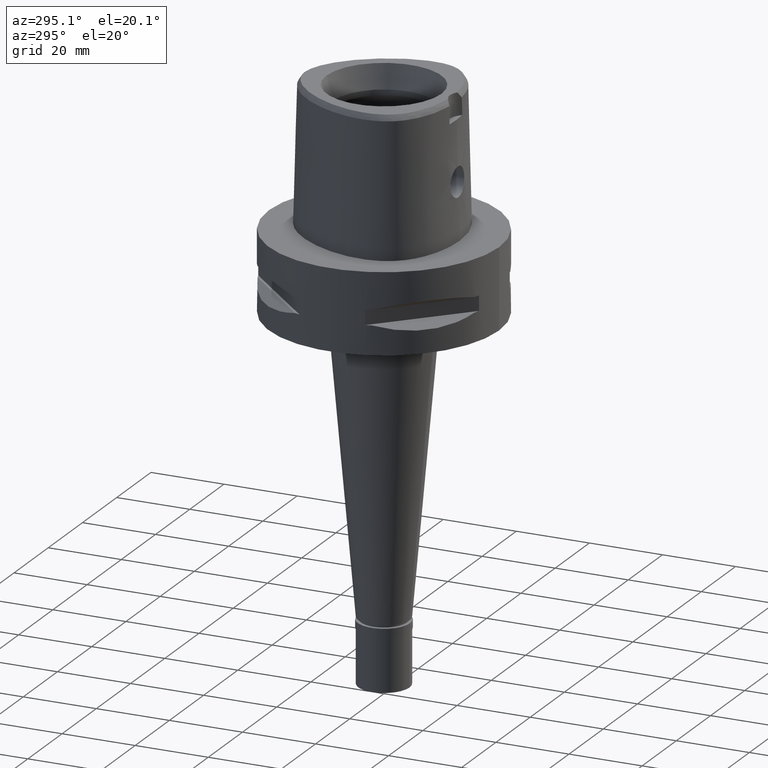
[diagram: clean part render]
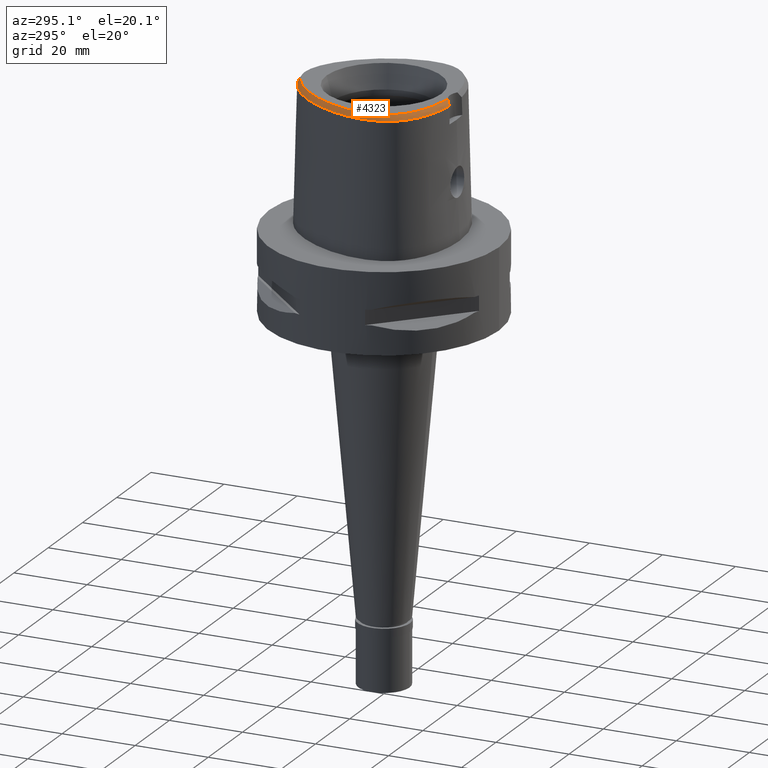
[diagram: same view with one face highlighted and labeled with its STEP entity id]
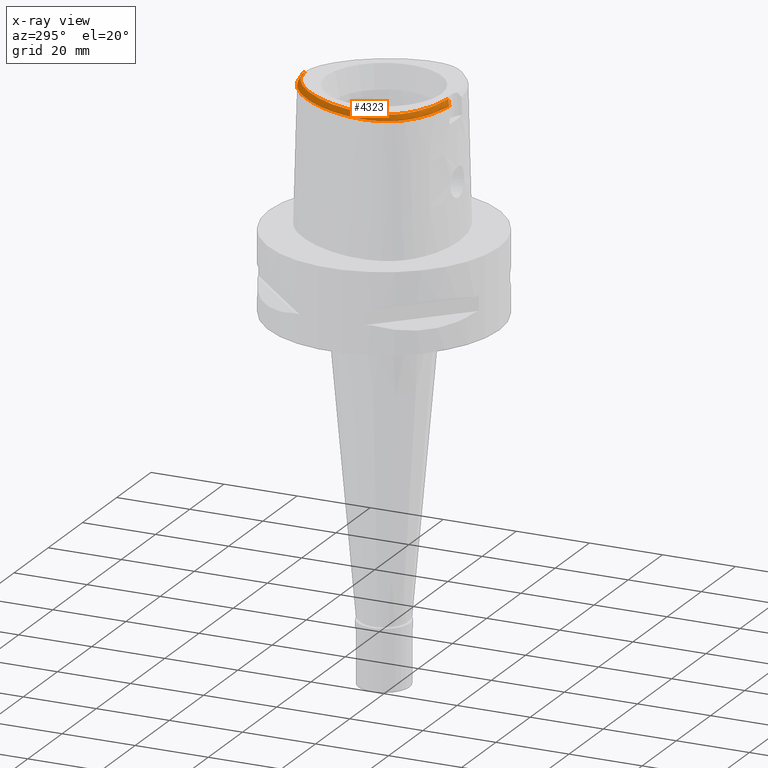
[diagram: x-ray of the same camera — body ghosted, the highlighted face saturated]
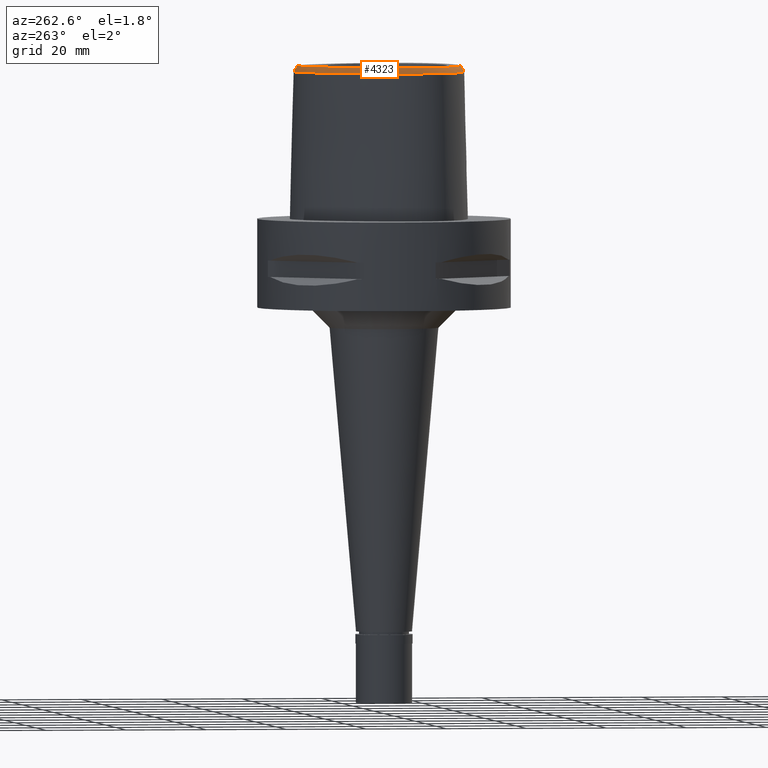
[diagram: same view with one face highlighted and labeled with its STEP entity id]
A machine part, auxiliary view. The second image highlights one B-rep face of the part: STEP entity #4323.
The next image is the same camera in x-ray: the body ghosted, the highlighted face saturated — about 0% of this face is hidden behind the body in this view.
A second angle (auxiliary view) of the same face is appended — the face is thin or edge-on in the first view.
In plain terms, the highlighted face is a freeform B-spline surface patch.
Its self-contained STEP definition (entity closure, byte-faithful):
#13 = CARTESIAN_POINT ( 'NONE',  ( -20.18507091242999962, -10.27080217816999941, 36.33730920690000232 ) ) ;
#17 = CARTESIAN_POINT ( 'NONE',  ( -2.682279906006999948, -18.78035848609999903, 38.00000000000000000 ) ) ;
#35 = CARTESIAN_POINT ( 'NONE',  ( -20.98257640658999890, -5.318571733355000219, 36.95304534323000212 ) ) ;
#47 = CARTESIAN_POINT ( 'NONE',  ( -19.98419490691658140, -7.809898894995987106, 37.99999999999893419 ) ) ;
#60 = CARTESIAN_POINT ( 'NONE',  ( -19.85209195542000060, -10.12225759972999839, 36.95304482433000715 ) ) ;
#85 = CARTESIAN_POINT ( 'NONE',  ( -20.37533892045000172, -8.724838899966998795, 36.95304468887999860 ) ) ;
#102 = CARTESIAN_POINT ( 'NONE',  ( -19.54919922641915520, -9.228169790567891440, 38.00000000000300560 ) ) ;
#109 = CARTESIAN_POINT ( 'NONE',  ( -2.129028429010999535, -19.80587395599000189, 36.33730992873000076 ) ) ;
#123 = CARTESIAN_POINT ( 'NONE',  ( -12.44116897271302058, 14.89128547409752912, 38.00000000000346034 ) ) ;
#132 = CARTESIAN_POINT ( 'NONE',  ( -15.87514741396999973, -14.49958176875999882, 37.56878043022999947 ) ) ;
#142 = CARTESIAN_POINT ( 'NONE',  ( -2.198999323874000211, 22.47039607780000026, 36.33730900220999871 ) ) ;
#149 = CARTESIAN_POINT ( 'NONE',  ( -10.17136073855662204, -17.24644253469881505, 37.99999999999920419 ) ) ;
#158 = CARTESIAN_POINT ( 'NONE',  ( -10.13504734495000115, -17.14341520066000157, 38.18451578748000230 ) ) ;
#166 = CARTESIAN_POINT ( 'NONE',  ( -4.215658479161999317, 20.76450822006999886, 38.18451608323000102 ) ) ;
#183 = CARTESIAN_POINT ( 'NONE',  ( -7.573514501227999851, -17.90397463388999810, 38.18451574515000146 ) ) ;
#189 = CARTESIAN_POINT ( 'NONE',  ( -6.010881776514001018, 20.35911127490000183, 37.56878056077000139 ) ) ;
#202 = CARTESIAN_POINT ( 'NONE',  ( -2.315568506164999540, -19.42932656560000027, 36.95304531299999695 ) ) ;
#211 = FACE_OUTER_BOUND ( 'NONE', #3479, .T. ) ;
#234 = CARTESIAN_POINT ( 'NONE',  ( -0.6887446045809000328, 22.29253218655000168, 36.95304455089999607 ) ) ;
#256 = CARTESIAN_POINT ( 'NONE',  ( -18.16376737907999939, 7.365439581777999400, 36.95304536617000224 ) ) ;
#263 = B_SPLINE_CURVE_WITH_KNOTS ( 'NONE', 3,
 ( #17, #3111, #4607, #2251 ),
 .UNSPECIFIED., .F., .F.,
 ( 4, 4 ),
 ( 0.0000000000000000000, 1.000000000000000000 ),
 .UNSPECIFIED. ) ;
#278 = CARTESIAN_POINT ( 'NONE',  ( -10.15169902995999962, 18.46414271463999768, 36.33731057710999579 ) ) ;
#304 = CARTESIAN_POINT ( 'NONE',  ( -3.637738201363999835, -19.56971413236999879, 36.52186244848000030 ) ) ;
#305 = CARTESIAN_POINT ( 'NONE',  ( -19.37889452079999586, 4.468327769675999761, 36.95304431115000199 ) ) ;
#331 = CARTESIAN_POINT ( 'NONE',  ( -21.13342134438999764, -0.8623622443116000236, 36.33730953845999778 ) ) ;
#353 = CARTESIAN_POINT ( 'NONE',  ( -14.25602107928999907, 12.48290860538000047, 38.18451599888999937 ) ) ;
#379 = CARTESIAN_POINT ( 'NONE',  ( -17.37265643493000056, -13.66636311014999983, 36.95304464722999427 ) ) ;
#403 = CARTESIAN_POINT ( 'NONE',  ( -17.36978564376000023, -12.61078706780999958, 38.18451607384000113 ) ) ;
#418 = CARTESIAN_POINT ( 'NONE',  ( -7.655222869372381389, 19.09452359226542839, 37.99999999999960210 ) ) ;
#429 = CARTESIAN_POINT ( 'NONE',  ( -19.78834364455000028, -9.317674896997001355, 37.56878051393000817 ) ) ;
#442 = CARTESIAN_POINT ( 'NONE',  ( -16.36032397153683959, -13.76458520345434167, 38.00000000000695621 ) ) ;
#455 = CARTESIAN_POINT ( 'NONE',  ( -20.72392772417000018, -8.831695603477999867, 36.33730899177999873 ) ) ;
#472 = CARTESIAN_POINT ( 'NONE',  ( -11.46564124494380366, 15.92741340513270920, 38.00000000000052580 ) ) ;
#482 = CARTESIAN_POINT ( 'NONE',  ( -2.084278638321999555, -19.07849178945999924, 37.56878062897999371 ) ) ;
#506 = CARTESIAN_POINT ( 'NONE',  ( -13.80323561452000192, -16.71719161161000144, 36.33730895135999361 ) ) ;
#513 = CARTESIAN_POINT ( 'NONE',  ( -7.796513101705000004, 19.30717071940000196, 37.56878040368000171 ) ) ;
#529 = CARTESIAN_POINT ( 'NONE',  ( -2.687245751519999892, -19.40301713574999809, 36.95304534601999791 ) ) ;
#540 = CARTESIAN_POINT ( 'NONE',  ( -5.843335212882999841, 20.03532601981999761, 38.18451600829000370 ) ) ;
#555 = CARTESIAN_POINT ( 'NONE',  ( -15.14851569656000052, -15.03594468366999948, 37.56878064808999795 ) ) ;
#563 = CARTESIAN_POINT ( 'NONE',  ( -8.948009362102000708, 18.94402799276000238, 36.95304436735000309 ) ) ;
#571 = EDGE_CURVE ( 'NONE', #2487, #3004, #3689, .T. ) ;
#581 = CARTESIAN_POINT ( 'NONE',  ( -9.210141199591999950, -18.59367920995000034, 36.33731327406999867 ) ) ;
#589 = CARTESIAN_POINT ( 'NONE',  ( 0.4143569490038999659, 22.30114980035000016, 36.95304470165000055 ) ) ;
#595 = CARTESIAN_POINT ( 'NONE',  ( -1.323674540694070645, 21.61098849315821724, 38.00000000000159162 ) ) ;
#600 = CARTESIAN_POINT ( 'NONE',  ( -14.22011356156590800, -16.41829364185921136, 36.52186244848000740 ) ) ;
#633 = CARTESIAN_POINT ( 'NONE',  ( -12.90291842515000020, 15.30474864205000074, 36.95304526468000006 ) ) ;
#657 = CARTESIAN_POINT ( 'NONE',  ( -9.919371421421999457, 18.18322996158999771, 36.95304568711999593 ) ) ;
#679 = CARTESIAN_POINT ( 'NONE',  ( -18.81457497261000000, 5.910995720565000333, 36.95304491785000067 ) ) ;
#704 = CARTESIAN_POINT ( 'NONE',  ( -17.11147581288999930, 8.638424120443000120, 37.56878049479000481 ) ) ;
#729 = CARTESIAN_POINT ( 'NONE',  ( -16.94264144185999754, 10.41425996445999935, 36.33730903685999891 ) ) ;
#750 = CARTESIAN_POINT ( 'NONE',  ( -16.85949181368999916, -13.14831067806999876, 38.18451609040999983 ) ) ;
#779 = CARTESIAN_POINT ( 'NONE',  ( -19.86774351649000181, -10.92586949346000047, 36.33730872462999884 ) ) ;
#794 = CARTESIAN_POINT ( 'NONE',  ( -15.24692477332533258, 11.25717358966638493, 38.00000000000024158 ) ) ;
#806 = CARTESIAN_POINT ( 'NONE',  ( -20.19626642356999824, -2.188077942025999700, 38.18451612994000754 ) ) ;
#817 = CARTESIAN_POINT ( 'NONE',  ( -7.108589416785442872, 20.52412325828244377, 36.52186244848000740 ) ) ;
#819 = CARTESIAN_POINT ( 'NONE',  ( -20.15090095364636369, -7.024227649787396999, 37.99999999999884182 ) ) ;
#831 = CARTESIAN_POINT ( 'NONE',  ( -18.89444140915999881, -11.16800349480999976, 37.56878044430000330 ) ) ;
#848 = CARTESIAN_POINT ( 'NONE',  ( -3.522896839653986589, -18.70811514173706058, 38.00000000000088107 ) ) ;
#863 = CARTESIAN_POINT ( 'NONE',  ( -21.02045118696999992, -4.317202866415999374, 36.95304481289000620 ) ) ;
#879 = CARTESIAN_POINT ( 'NONE',  ( -16.09805956313724096, 9.908742513516916262, 38.00000000000546407 ) ) ;
#890 = CARTESIAN_POINT ( 'NONE',  ( -11.41502885936999867, -17.04407600737999928, 37.56878032552000235 ) ) ;
#894 = ORIENTED_EDGE ( 'NONE', *, *, #4505, .T. ) ;
#900 = CARTESIAN_POINT ( 'NONE',  ( -6.703964146612999997, 19.56043154054999889, 38.18451607968000161 ) ) ;
#906 = CARTESIAN_POINT ( 'NONE',  ( -17.45119705494190754, -12.68365517585671043, 38.00000000000304823 ) ) ;
#915 = CARTESIAN_POINT ( 'NONE',  ( -7.832361318580000287, -18.96647478035000134, 36.33731203685999844 ) ) ;
#923 = CARTESIAN_POINT ( 'NONE',  ( -0.02690733806876000056, 22.31324336225999971, 36.95304491319999585 ) ) ;
#940 = CARTESIAN_POINT ( 'NONE',  ( -13.28256881731999961, -15.75541261661999748, 38.18451608756000581 ) ) ;
#949 = CARTESIAN_POINT ( 'NONE',  ( 0.5885283275144000958, 21.56237285516000313, 38.18451613489000351 ) ) ;
#967 = CARTESIAN_POINT ( 'NONE',  ( -14.72530115208000012, -16.18400659783999984, 36.33730951911999796 ) ) ;
#993 = CARTESIAN_POINT ( 'NONE',  ( -6.345974903775999820, 21.00668178508000139, 36.33730966571999943 ) ) ;
#1017 = CARTESIAN_POINT ( 'NONE',  ( -16.79020438227999890, 8.466216336563000766, 38.18451603652000159 ) ) ;
#1038 = CARTESIAN_POINT ( 'NONE',  ( -17.75401867412000101, 8.982839688204999007, 36.33730941134999171 ) ) ;
#1053 = CARTESIAN_POINT ( 'NONE',  ( -6.236636558138999753, -18.56898940519999996, 37.56878034593999871 ) ) ;
#1062 = CARTESIAN_POINT ( 'NONE',  ( -14.54968906057000133, 12.69885148390000040, 37.56878058270999787 ) ) ;
#1083 = CARTESIAN_POINT ( 'NONE',  ( -18.47843640201000071, 5.769986140440999556, 37.56878048027999739 ) ) ;
#1114 = CARTESIAN_POINT ( 'NONE',  ( -12.16592208821000121, 16.61917845497000101, 36.33731289589000113 ) ) ;
#1140 = CARTESIAN_POINT ( 'NONE',  ( -20.12981641206000205, -9.445478659415998735, 36.95304499952000299 ) ) ;
#1164 = CARTESIAN_POINT ( 'NONE',  ( -20.94103138912999640, -8.041723928345000161, 36.33730888657000691 ) ) ;
#1189 = CARTESIAN_POINT ( 'NONE',  ( -21.11967741692999923, -7.199477501791999856, 36.33730883041999959 ) ) ;
#1218 = CARTESIAN_POINT ( 'NONE',  ( -19.54462228230000065, -10.75693248910999955, 36.95304452066000067 ) ) ;
#1229 = CARTESIAN_POINT ( 'NONE',  ( -0.7901461696976236349, 22.56201478746444167, 36.52186244848000740 ) ) ;
#1233 = CARTESIAN_POINT ( 'NONE',  ( -18.79649882724708476, 4.256255933891022636, 37.99999999999310063 ) ) ;
#1241 = CARTESIAN_POINT ( 'NONE',  ( -20.40215353787000296, -7.069678772796000210, 37.56878034412999767 ) ) ;
#1262 = CARTESIAN_POINT ( 'NONE',  ( -17.60426951086655478, 7.098774535281628495, 37.99999999999333511 ) ) ;
#1271 = CARTESIAN_POINT ( 'NONE',  ( -16.52899001944000190, -13.95627842556000076, 37.56878034182000192 ) ) ;
#1278 = CARTESIAN_POINT ( 'NONE',  ( -2.064220249234000271, 21.75375259345999979, 37.56878038868000402 ) ) ;
#1292 = CARTESIAN_POINT ( 'NONE',  ( -7.659796773679000026, -18.25814134938000066, 37.56878117571999809 ) ) ;
#1304 = CARTESIAN_POINT ( 'NONE',  ( 0.6491581407422000183, 22.65377571329000261, 36.33730852483000007 ) ) ;
#1312 = CARTESIAN_POINT ( 'NONE',  ( -3.475593359606999682E-11, 21.68728795390000030, 38.00000000000000000 ) ) ;
#1320 = CARTESIAN_POINT ( 'NONE',  ( -16.32424359602999786, -15.07402548676999920, 36.33730916241000131 ) ) ;
#1328 = CARTESIAN_POINT ( 'NONE',  ( -5.162650465159000390, 20.76744500909000024, 37.56878052391000011 ) ) ;
#1344 = CARTESIAN_POINT ( 'NONE',  ( -2.266354038267999638, -18.70221909909999880, 38.18451597308000345 ) ) ;
#1370 = CARTESIAN_POINT ( 'NONE',  ( -4.846286384608999853, -19.54163353081000309, 36.33730904987999821 ) ) ;
#1377 = CARTESIAN_POINT ( 'NONE',  ( -3.667566264865000036, 21.72628668910999750, 36.95304499720000280 ) ) ;
#1398 = CARTESIAN_POINT ( 'NONE',  ( -16.00433262329999806, 9.852643034111000730, 38.18451607808000148 ) ) ;
#1414 = VECTOR ( 'NONE', #3118, 1000.000000000000227 ) ;
#1417 = CARTESIAN_POINT ( 'NONE',  ( -12.63135418743999949, 15.06158254962999976, 37.56878062313999322 ) ) ;
#1427 = EDGE_CURVE ( 'NONE', #4056, #2487, #263, .T. ) ;
#1441 = CARTESIAN_POINT ( 'NONE',  ( -10.90834785286999953, 17.32332415628999911, 36.95304727316999305 ) ) ;
#1456 = CARTESIAN_POINT ( 'NONE',  ( -10.15538788053308927, 18.47129535094024178, 36.52186244848000740 ) ) ;
#1465 = CARTESIAN_POINT ( 'NONE',  ( -12.35978994972999878, 14.81841645721000056, 38.18451598160000060 ) ) ;
#1490 = CARTESIAN_POINT ( 'NONE',  ( -19.85526247840000025, 3.052097962454000335, 36.95304603679000621 ) ) ;
#1517 = CARTESIAN_POINT ( 'NONE',  ( -17.64145796185999870, -12.85395012740000098, 37.56878040757000292 ) ) ;
#1541 = CARTESIAN_POINT ( 'NONE',  ( -21.36643673479000327, -3.234091451263000128, 36.33730898278999177 ) ) ;
#1562 = CARTESIAN_POINT ( 'NONE',  ( -21.34638171082999847, -5.342155950168000267, 36.33731003096999501 ) ) ;
#1578 = CARTESIAN_POINT ( 'NONE',  ( -5.058220461389586475, 20.53445508814830234, 37.99999999999654676 ) ) ;
#1589 = CARTESIAN_POINT ( 'NONE',  ( -20.23235085201000061, -7.870022815139000372, 37.56878035868999888 ) ) ;
#1618 = CARTESIAN_POINT ( 'NONE',  ( -19.51801671275000061, -11.54608534727000091, 36.33730921666000313 ) ) ;
#1633 = CARTESIAN_POINT ( 'NONE',  ( -2.841965291530688109, -18.76757795571831267, 37.99999999999987210 ) ) ;
#1642 = CARTESIAN_POINT ( 'NONE',  ( -10.25622622731999911, -17.48722050091999947, 37.56878107679000323 ) ) ;
#1658 = CARTESIAN_POINT ( 'NONE',  ( -2.682279906006999948, -18.78035848609999903, 38.00000000000000000 ) ) ;
#1670 = CARTESIAN_POINT ( 'NONE',  ( -14.53447828968000088, -15.87337238872999912, 36.95304502092999854 ) ) ;
#1679 = CARTESIAN_POINT ( 'NONE',  ( -1.355417965390000257, 21.86435530836999774, 37.56878023777999687 ) ) ;
#1685 = ORIENTED_EDGE ( 'NONE', *, *, #571, .F. ) ;
#1688 = CARTESIAN_POINT ( 'NONE',  ( -11.31790883121279023, -16.80796958613593972, 37.99999999999668177 ) ) ;
#1695 = CARTESIAN_POINT ( 'NONE',  ( -21.14970188364185333, -6.717195958887213436, 36.52186244848000740 ) ) ;
#1697 = CARTESIAN_POINT ( 'NONE',  ( -4.691536587948999859, -18.45908343680000030, 38.18451607663000402 ) ) ;
#1706 = CARTESIAN_POINT ( 'NONE',  ( 0.6289482029996000811, 22.28997476057999805, 36.95304439485000358 ) ) ;
#1719 = CARTESIAN_POINT ( 'NONE',  ( -19.55745547456383449, -11.29150218116444471, 36.52186244848000740 ) ) ;
#1721 = CARTESIAN_POINT ( 'NONE',  ( -6.374457874851000128, -19.28488673837999912, 36.33730883741999662 ) ) ;
#1729 = CARTESIAN_POINT ( 'NONE',  ( -9.165489689892000413, 19.23659463607999953, 36.33730848116000089 ) ) ;
#1745 = CARTESIAN_POINT ( 'NONE',  ( -2.340175740112999669, -19.79288029884999744, 36.33730998296000081 ) ) ;
#1754 = CARTESIAN_POINT ( 'NONE',  ( -4.345471166404999863, 21.10519701085999955, 37.56878038561999489 ) ) ;
#1770 = ORIENTED_EDGE ( 'NONE', *, *, #3466, .F. ) ;
#1772 = CARTESIAN_POINT ( 'NONE',  ( 0.4008181513137999974, 21.93696204017000184, 37.56878039124000423 ) ) ;
#1791 = CARTESIAN_POINT ( 'NONE',  ( -20.59775548460000039, 1.765081708753999834, 36.33731335473999735 ) ) ;
#1811 = CARTESIAN_POINT ( 'NONE',  ( -19.03637577663999991, 4.343604012840000195, 37.56878023039000425 ) ) ;
#1838 = CARTESIAN_POINT ( 'NONE',  ( -19.15890738198000065, 2.836225961430999920, 38.18451584551999645 ) ) ;
#1857 = CARTESIAN_POINT ( 'NONE',  ( -1.709898365991000259E-11, 22.56201468012000078, 36.52186680743999858 ) ) ;
#1866 = CARTESIAN_POINT ( 'NONE',  ( -19.72141326494999802, 4.593051526511000127, 36.33730839190000239 ) ) ;
#1887 = CARTESIAN_POINT ( 'NONE',  ( -18.39632534895999783, -12.52233836712999882, 36.95304509468000020 ) ) ;
#1909 = CARTESIAN_POINT ( 'NONE',  ( -21.00225135283999833, -3.250479583054000088, 36.95304468321999991 ) ) ;
#1934 = CARTESIAN_POINT ( 'NONE',  ( -17.62923874555000125, -13.92538932617999947, 36.33730892563999504 ) ) ;
#1947 = CARTESIAN_POINT ( 'NONE',  ( -20.30498420086961886, -2.177378896258027829, 38.00000000000496669 ) ) ;
#1956 = CARTESIAN_POINT ( 'NONE',  ( -20.61877110236000021, -5.294987516542999373, 37.56878065549000212 ) ) ;
#1969 = CARTESIAN_POINT ( 'NONE',  ( -4.757642277158672606, 21.67478330407624654, 36.52186244848000740 ) ) ;
#1973 = CARTESIAN_POINT ( 'NONE',  ( -19.26324493738452048, 2.868570891456977190, 38.00000000000227374 ) ) ;
#1988 = CARTESIAN_POINT ( 'NONE',  ( -20.29135968569999804, -4.310398007224000239, 38.18451606122000186 ) ) ;
#2005 = CARTESIAN_POINT ( 'NONE',  ( -4.254559144977612561, 20.86660163697036552, 38.00000000000117240 ) ) ;
#2016 = CARTESIAN_POINT ( 'NONE',  ( -2.106653533665999944, -19.44218287272000367, 36.95304527885000567 ) ) ;
#2033 = CARTESIAN_POINT ( 'NONE',  ( -19.78262210840563284, -8.543146992552985708, 38.00000000000400036 ) ) ;
#2041 = CARTESIAN_POINT ( 'NONE',  ( -11.55370591926000046, -17.38121083879999773, 36.95304454209999534 ) ) ;
#2065 = CARTESIAN_POINT ( 'NONE',  ( -15.35635954876999953, -15.33546644513000068, 36.95304532526000685 ) ) ;
#2073 = CARTESIAN_POINT ( 'NONE',  ( -6.178428340145000419, 20.68289652998999983, 36.95304511323999463 ) ) ;
#2093 = CARTESIAN_POINT ( 'NONE',  ( -9.002725859484000281, -17.89474581494999939, 37.56878149658999888 ) ) ;
#2101 = CARTESIAN_POINT ( 'NONE',  ( -1.400744196150000009, 22.22613614464999898, 36.95304432908000081 ) ) ;
#2113 = CARTESIAN_POINT ( 'NONE',  ( -20.67704215115907473, -8.734985316449373371, 36.52186244848000740 ) ) ;
#2115 = CARTESIAN_POINT ( 'NONE',  ( -13.45612441639000068, -16.07600561494999880, 37.56878037550000471 ) ) ;
#2124 = CARTESIAN_POINT ( 'NONE',  ( -3.557852970450999575, 21.37859635196000241, 37.56878051297000098 ) ) ;
#2129 = CARTESIAN_POINT ( 'NONE',  ( -2.017025177696486260, 21.50280829367815372, 37.99999999999343459 ) ) ;
#2151 = CARTESIAN_POINT ( 'NONE',  ( -7.259275558956000296, 20.50264112760000046, 36.33730902236000304 ) ) ;
#2173 = CARTESIAN_POINT ( 'NONE',  ( -20.20344002661000360, 3.160033962965000498, 36.33731113243000266 ) ) ;
#2194 = CARTESIAN_POINT ( 'NONE',  ( -19.50708493019000400, 2.944161961941999639, 37.56878094116000000 ) ) ;
#2219 = CARTESIAN_POINT ( 'NONE',  ( -20.54920671724000059, 0.3481639210567000209, 36.95304695229000203 ) ) ;
#2245 = CARTESIAN_POINT ( 'NONE',  ( -17.43274724349999971, 8.810631904323999564, 36.95304495307000536 ) ) ;
#2251 = CARTESIAN_POINT ( 'NONE',  ( -3.637738201363999835, -19.56971413236999879, 36.52186244848000030 ) ) ;
#2274 = CARTESIAN_POINT ( 'NONE',  ( -14.84335704184999827, 12.91479436242000034, 36.95304516652999638 ) ) ;
#2296 = CARTESIAN_POINT ( 'NONE',  ( -17.11607412431000341, -13.40733689410999929, 37.56878036882000060 ) ) ;
#2325 = CARTESIAN_POINT ( 'NONE',  ( -18.82654066529000048, -11.94177046576000123, 36.95304452115999538 ) ) ;
#2341 = CARTESIAN_POINT ( 'NONE',  ( -6.759433772717937217, 19.65454812512675531, 37.99999999999653255 ) ) ;
#2351 = CARTESIAN_POINT ( 'NONE',  ( -20.17053621135000085, -6.168705337529999611, 38.18451602836000092 ) ) ;
#2363 = CARTESIAN_POINT ( 'NONE',  ( -2.376843896517655264, 22.39422508473721507, 36.52186244848000740 ) ) ;
#2366 = CARTESIAN_POINT ( 'NONE',  ( -14.21001600787627339, -15.34519100086062515, 37.99999999999609912 ) ) ;
#2376 = CARTESIAN_POINT ( 'NONE',  ( -19.51911299842000247, -9.973713021282000213, 37.56878044176999509 ) ) ;
#2384 = CARTESIAN_POINT ( 'NONE',  ( -1.709898365991000259E-11, 22.56201468012000078, 36.52186680743999858 ) ) ;
#2393 = CARTESIAN_POINT ( 'NONE',  ( -12.37132652997273041, -16.34104299088073731, 37.99999999999595701 ) ) ;
#2405 = CARTESIAN_POINT ( 'NONE',  ( -19.22150104812000038, -10.58799548475999863, 37.56878031668999540 ) ) ;
#2423 = CARTESIAN_POINT ( 'NONE',  ( -15.00295592774214803, -14.82617991125727563, 38.00000000000061817 ) ) ;
#2434 = CARTESIAN_POINT ( 'NONE',  ( -14.94067184435999884, -14.73642292221000005, 38.18451597091999616 ) ) ;
#2443 = CARTESIAN_POINT ( 'NONE',  ( -5.460880318711000214, 21.43281461068000127, 36.33730952362999744 ) ) ;
#2456 = CARTESIAN_POINT ( 'NONE',  ( -2.658654439054999763, -19.03974528279999845, 37.56878065663999422 ) ) ;
#2463 = CARTESIAN_POINT ( 'NONE',  ( -0.7115904893532000175, 22.65643130755000101, 36.33730877266000192 ) ) ;
#2480 = CARTESIAN_POINT ( 'NONE',  ( -20.09619618740940084, -10.23243843867939340, 36.52186244848000740 ) ) ;
#2484 = CARTESIAN_POINT ( 'NONE',  ( -4.794703119054999796, -19.18078349946999950, 36.95304472546000341 ) ) ;
#2487 = VERTEX_POINT ( 'NONE', #304 ) ;
#2490 = CARTESIAN_POINT ( 'NONE',  ( -6.889067950727000067, 19.87450140290000178, 37.56878039389999913 ) ) ;
#2506 = CARTESIAN_POINT ( 'NONE',  ( -3.549734414526999782, -18.96193116986000149, 37.56878062707999533 ) ) ;
#2513 = CARTESIAN_POINT ( 'NONE',  ( -1.446070426911000073, 22.58791698093000022, 36.33730842036999320 ) ) ;
#2524 = CARTESIAN_POINT ( 'NONE',  ( -7.300578999876284669, -19.07170748891975265, 36.52186244848000740 ) ) ;
#2533 = CARTESIAN_POINT ( 'NONE',  ( -2.131609786553999797, 22.11207433562999825, 36.95304469543999915 ) ) ;
#2541 = CARTESIAN_POINT ( 'NONE',  ( -2.735698246183100313, 21.34559102902258232, 38.00000000000549960 ) ) ;
#2561 = CARTESIAN_POINT ( 'NONE',  ( -13.31954637369999972, 13.69384002444999915, 38.18451613796000288 ) ) ;
#2581 = CARTESIAN_POINT ( 'NONE',  ( -11.64725937691000013, 16.10682296247999901, 37.56878139850999787 ) ) ;
#2595 = CARTESIAN_POINT ( 'NONE',  ( -7.746079046130000201, -18.61230806486999967, 36.95304660629000182 ) ) ;
#2606 = CARTESIAN_POINT ( 'NONE',  ( -15.15595151531999996, 11.19671057871000031, 38.18451596696999673 ) ) ;
#2629 = CARTESIAN_POINT ( 'NONE',  ( -18.69385703248000041, 4.218880256005000717, 38.18451614964000385 ) ) ;
#2651 = CARTESIAN_POINT ( 'NONE',  ( -17.50566324368999815, 7.051777314530999874, 38.18451596369999379 ) ) ;
#2674 = CARTESIAN_POINT ( 'NONE',  ( -18.11033994563999983, -12.29617252680000128, 37.56878055312000697 ) ) ;
#2698 = CARTESIAN_POINT ( 'NONE',  ( -18.58265375736000280, -10.97896256858999919, 38.18451605812000338 ) ) ;
#2717 = CARTESIAN_POINT ( 'NONE',  ( -20.27898581532152278, -6.181921586189995210, 38.00000000000031974 ) ) ;
#2728 = CARTESIAN_POINT ( 'NONE',  ( -20.04339159833000039, -7.004779408297000742, 38.18451610098000515 ) ) ;
#2742 = CARTESIAN_POINT ( 'NONE',  ( -18.99520880204379836, -10.46968343926177347, 37.99999999999787548 ) ) ;
#2752 = CARTESIAN_POINT ( 'NONE',  ( -20.63806597090000139, -3.266867714843999959, 37.56878038364999384 ) ) ;
#2763 = LINE ( 'NONE', #2384, #1414 ) ;
#2770 = CARTESIAN_POINT ( 'NONE',  ( -10.48962422759627700, 16.86631853279250137, 38.00000000000261480 ) ) ;
#2779 = CARTESIAN_POINT ( 'NONE',  ( -20.76091547739999754, -7.134578137293999589, 36.95304458727999730 ) ) ;
#2797 = CARTESIAN_POINT ( 'NONE',  ( -16.88647904405384637, 8.517821442303024071, 38.00000000000365930 ) ) ;
#2808 = CARTESIAN_POINT ( 'NONE',  ( -12.63685552760999897, -16.90114488592999820, 36.95304458675000348 ) ) ;
#2817 = CARTESIAN_POINT ( 'NONE',  ( -2.797941077152000133, 21.59322731105000059, 37.56878054717000026 ) ) ;
#2824 = CARTESIAN_POINT ( 'NONE',  ( -18.67608643721335682, -11.03561202291209575, 38.00000000000033396 ) ) ;
#2835 = CARTESIAN_POINT ( 'NONE',  ( -2.630063126590000078, -18.67647342983999792, 38.18451596726000474 ) ) ;
#2844 = CARTESIAN_POINT ( 'NONE',  ( -0.02770009181525000252, 22.67783618535000301, 36.33730934802999712 ) ) ;
#2851 = CARTESIAN_POINT ( 'NONE',  ( -0.6498990081535668262, 21.67378274708581287, 37.99999999999869260 ) ) ;
#2856 = CARTESIAN_POINT ( 'NONE',  ( -12.32452952721000017, -16.24233026961999826, 38.18451610107000249 ) ) ;
#2862 = CARTESIAN_POINT ( 'NONE',  ( -8.513048706522997833, 18.35889470611000007, 38.18451613974000480 ) ) ;
#2882 = CARTESIAN_POINT ( 'NONE',  ( -2.290961272215999767, -19.06577283234999953, 37.56878064304000020 ) ) ;
#2889 = CARTESIAN_POINT ( 'NONE',  ( -0.6430528350362999523, 21.56473394456000392, 38.18451610739000301 ) ) ;
#2904 = CARTESIAN_POINT ( 'NONE',  ( -2.061903742976999965, -18.71480070618999747, 38.18451597909999862 ) ) ;
#2912 = CARTESIAN_POINT ( 'NONE',  ( -4.475283853647000321, 21.44588580165000025, 36.95304468801000297 ) ) ;
#2935 = CARTESIAN_POINT ( 'NONE',  ( -20.24468229879999726, 1.674415712350000085, 36.95304743612000209 ) ) ;
#2941 = CARTESIAN_POINT ( 'NONE',  ( -3.481017203589050979, 21.13509756881755308, 37.99999999999544542 ) ) ;
#2949 = CARTESIAN_POINT ( 'NONE',  ( -16.39211280191441489, -14.95758113318704652, 36.52186244848000740 ) ) ;
#2960 = CARTESIAN_POINT ( 'NONE',  ( -11.90659073255999978, 16.36300070872000134, 36.95304714719999595 ) ) ;
#2967 = CARTESIAN_POINT ( 'NONE',  ( -1.709898365991000259E-11, 22.56201468012000078, 36.52186680743999858 ) ) ;
#2986 = CARTESIAN_POINT ( 'NONE',  ( -13.60255999601000099, 13.92357386595999991, 37.56878025771000296 ) ) ;
#3004 = VERTEX_POINT ( 'NONE', #2967 ) ;
#3009 = CARTESIAN_POINT ( 'NONE',  ( -11.15460772716000015, 17.59209845178000009, 36.33731309594000436 ) ) ;
#3010 = CARTESIAN_POINT ( 'NONE',  ( -3.475593359606999682E-11, 21.68728795390000030, 38.00000000000000000 ) ) ;
#3033 = CARTESIAN_POINT ( 'NONE',  ( -20.19203118847000056, 0.2752902703901000114, 37.56878131823000189 ) ) ;
#3061 = CARTESIAN_POINT ( 'NONE',  ( -17.91313027996000073, -13.09711318699999971, 36.95304474130999495 ) ) ;
#3083 = CARTESIAN_POINT ( 'NONE',  ( -19.87801058345000271, -7.784172258536999678, 38.18451609475000197 ) ) ;
#3105 = CARTESIAN_POINT ( 'NONE',  ( -20.53243578881999909, -6.212808355251000059, 37.56878051385000106 ) ) ;
#3111 = CARTESIAN_POINT ( 'NONE',  ( -3.014271304879253766, -18.99139391534837173, 37.59976690302464419 ) ) ;
#3118 = DIRECTION ( 'NONE',  ( -1.028023087690013303E-11, -0.5092834681090075977, 0.8605988316927122295 ) ) ;
#3125 = CARTESIAN_POINT ( 'NONE',  ( -20.40060226222547257, -4.311417605381054230, 38.00000000000147793 ) ) ;
#3138 = CARTESIAN_POINT ( 'NONE',  ( -20.25496579812000064, -5.271403299730999414, 38.18451596775000212 ) ) ;
#3155 = CARTESIAN_POINT ( 'NONE',  ( -9.524337278001938856, 17.70558492630402725, 37.99999999999589306 ) ) ;
#3165 = CARTESIAN_POINT ( 'NONE',  ( -20.89433536628999732, -6.256911372971999619, 36.95304499934000120 ) ) ;
#3181 = CARTESIAN_POINT ( 'NONE',  ( -17.91005512243991049, -12.13778127739320389, 38.00000000000270006 ) ) ;
#3189 = CARTESIAN_POINT ( 'NONE',  ( -17.01066433668000144, -14.50371344893999925, 36.33730882150000241 ) ) ;
#3209 = CARTESIAN_POINT ( 'NONE',  ( -16.93638123745602897, -13.22593246128444555, 37.99999999999513278 ) ) ;
#3217 = CARTESIAN_POINT ( 'NONE',  ( -12.79301852780999837, -17.23055219409000216, 36.33730882959000041 ) ) ;
#3224 = CARTESIAN_POINT ( 'NONE',  ( -5.311765391934999414, 21.10012980987999853, 36.95304502376999523 ) ) ;
#3231 = CARTESIAN_POINT ( 'NONE',  ( -7.599370508970504368, -18.01010694911206400, 38.00000000000024158 ) ) ;
#3237 = CARTESIAN_POINT ( 'NONE',  ( -21.32871527669840361, -4.105831244394130941, 36.52186244848000740 ) ) ;
#3240 = CARTESIAN_POINT ( 'NONE',  ( -15.56420340097000121, -15.63498820659000188, 36.33731000243000153 ) ) ;
#3247 = CARTESIAN_POINT ( 'NONE',  ( -0.6658987198086000481, 21.92863306555999614, 37.56878032915000176 ) ) ;
#3256 = CARTESIAN_POINT ( 'NONE',  ( -17.27359245833669377, 9.972912913898941412, 36.52186244848000740 ) ) ;
#3258 = CARTESIAN_POINT ( 'NONE',  ( -12.48069252740999957, -16.57173757778000223, 37.56878034390999943 ) ) ;
#3284 = CARTESIAN_POINT ( 'NONE',  ( -11.27635179948000044, -16.70694117596999817, 38.18451610894000225 ) ) ;
#3291 = CARTESIAN_POINT ( 'NONE',  ( -0.02611458432225999965, 21.94865053916999997, 37.56878047837000167 ) ) ;
#3311 = ORIENTED_EDGE ( 'NONE', *, *, #1427, .F. ) ;
#3314 = CARTESIAN_POINT ( 'NONE',  ( -9.687043812886001248, 17.90231720853999775, 37.56878079712999607 ) ) ;
#3334 = CARTESIAN_POINT ( 'NONE',  ( -16.06669297756999981, 11.80201121557999855, 36.33731003801999293 ) ) ;
#3359 = CARTESIAN_POINT ( 'NONE',  ( -20.41255328583999784, -0.9714865389024001097, 37.56878052776000487 ) ) ;
#3384 = CARTESIAN_POINT ( 'NONE',  ( -20.77298731511000085, -0.9169243916070000111, 36.95304503310999422 ) ) ;
#3407 = CARTESIAN_POINT ( 'NONE',  ( -10.66208797857999890, 17.05454986079000079, 37.56878145039999595 ) ) ;
#3434 = CARTESIAN_POINT ( 'NONE',  ( -17.82435454232999916, -12.07000668648000108, 38.18451601156000663 ) ) ;
#3457 = CARTESIAN_POINT ( 'NONE',  ( -20.55906090346999804, -2.152374905768000168, 37.56878027646999385 ) ) ;
#3466 = EDGE_CURVE ( 'NONE', #3004, #4155, #2763, .T. ) ;
#3479 = EDGE_LOOP ( 'NONE', ( #894, #1770, #1685, #3311 ) ) ;
#3481 = CARTESIAN_POINT ( 'NONE',  ( -19.18613404140999990, -9.825168442838000615, 38.18451605919999992 ) ) ;
#3495 = CARTESIAN_POINT ( 'NONE',  ( -13.33457781970033551, -15.85148397417170152, 38.00000000000068212 ) ) ;
#3507 = CARTESIAN_POINT ( 'NONE',  ( -20.47128917957000027, -9.573282421834999667, 36.33730948511999514 ) ) ;
#3525 = CARTESIAN_POINT ( 'NONE',  ( -18.24302769441047545, 5.671232572958810003, 37.99999999999752731 ) ) ;
#3533 = CARTESIAN_POINT ( 'NONE',  ( -19.67816131302000215, -8.511125492947000382, 38.18451608308000544 ) ) ;
#3550 = CARTESIAN_POINT ( 'NONE',  ( -8.930096025510360747, -17.65000298921415478, 37.99999999999897682 ) ) ;
#3558 = CARTESIAN_POINT ( 'NONE',  ( -3.626376813602000038, -19.68677569887000089, 36.33730992144000282 ) ) ;
#3572 = CARTESIAN_POINT ( 'NONE',  ( -20.16012968311655840, -1.009698174524545466, 38.00000000000171951 ) ) ;
#3579 = CARTESIAN_POINT ( 'NONE',  ( -15.65059932293999800, -14.21235990975000085, 38.18451606413000121 ) ) ;
#3588 = CARTESIAN_POINT ( 'NONE',  ( -8.200007919052998417, 19.91444563363999976, 36.33730906003999905 ) ) ;
#3599 = CARTESIAN_POINT ( 'NONE',  ( -6.188376196366293769, -18.31830638231481245, 37.99999999999499778 ) ) ;
#3607 = CARTESIAN_POINT ( 'NONE',  ( -2.715837063985999666, -19.76628898871000217, 36.33731003540999893 ) ) ;
#3615 = CARTESIAN_POINT ( 'NONE',  ( -2.975693348475999755, 22.30042380111000000, 36.33730961329000309 ) ) ;
#3632 = CARTESIAN_POINT ( 'NONE',  ( -9.106433529538000116, -18.24421251244999809, 36.95304738533000233 ) ) ;
#3639 = CARTESIAN_POINT ( 'NONE',  ( -2.709064941489999878, 21.23962906602000089, 38.18451601411000240 ) ) ;
#3650 = CARTESIAN_POINT ( 'NONE',  ( -19.88562090098784552, 4.345879983792252155, 36.52186244848000740 ) ) ;
#3652 = CARTESIAN_POINT ( 'NONE',  ( -3.588055614063999865, -19.32435343435999897, 36.95304527425999908 ) ) ;
#3658 = CARTESIAN_POINT ( 'NONE',  ( -3.448139676035999912, 21.03090601481999755, 38.18451602873000184 ) ) ;
#3665 = CARTESIAN_POINT ( 'NONE',  ( -0.2181979014509072279, 21.68728795389177222, 37.99999999999901945 ) ) ;
#3682 = CARTESIAN_POINT ( 'NONE',  ( -1.310091734630000060, 21.50257447207999917, 38.18451614649000447 ) ) ;
#3689 = B_SPLINE_CURVE_WITH_KNOTS ( 'NONE', 3,
 ( #4842, #4428, #2524, #4029, #600, #2949, #4100, #3719, #1719, #2480, #2113, #1695, #3237, #4005, #3650, #3256, #4889, #1456, #817, #1969, #2363, #1229, #1857 ),
 .UNSPECIFIED., .F., .F.,
 ( 4, 1, 1, 1, 1, 1, 1, 1, 1, 1, 1, 1, 1, 1, 1, 1, 1, 1, 1, 1, 4 ),
 ( 0.0000000000000000000, 0.03580973941714645642, 0.1234633994702096227, 0.1672902294965308290, 0.2111170595230624780, 0.2549438895494888779, 0.2768573045627020224, 0.2987707195759153334, 0.3206841345892336714, 0.3425975496023417333, 0.3864243796288732713, 0.4302512096552996712, 0.4740780396817261266, 0.5617316997345789265, 0.6493853597876420025, 0.7370390198404948023, 0.8246926798933477132, 0.8685195099198793622, 0.9123463399462951040, 0.9561731699727425982, 1.000000000000000000 ),
 .UNSPECIFIED. ) ;
#3707 = CARTESIAN_POINT ( 'NONE',  ( -19.89160911299999768, 1.583749715944999803, 37.56878151751000416 ) ) ;
#3719 = CARTESIAN_POINT ( 'NONE',  ( -18.90964971338330614, -12.28759719904332570, 36.52186244848000740 ) ) ;
#3725 = CARTESIAN_POINT ( 'NONE',  ( -20.05211925655999750, -1.026048686198000048, 38.18451602241000131 ) ) ;
#3750 = CARTESIAN_POINT ( 'NONE',  ( -16.31710222947999966, 10.03984867756000021, 37.56878039766999677 ) ) ;
#3751 = CARTESIAN_POINT ( 'NONE',  ( -2.682279906006999948, -18.78035848609999903, 38.00000000000000000 ) ) ;
#3774 = CARTESIAN_POINT ( 'NONE',  ( -19.83485565970000053, 0.2024166197235000020, 38.18451568417000175 ) ) ;
#3797 = CARTESIAN_POINT ( 'NONE',  ( -11.38792802124999959, 15.85064521622999933, 38.18451564982000690 ) ) ;
#3823 = CARTESIAN_POINT ( 'NONE',  ( -20.65590543633999943, -4.313800436820000250, 37.56878043705999914 ) ) ;
#3848 = CARTESIAN_POINT ( 'NONE',  ( -18.68231075227999938, -12.74850420745000079, 36.33730963623999344 ) ) ;
#3867 = CARTESIAN_POINT ( 'NONE',  ( -19.64434054693262865, 1.520253387635620346, 37.99999999999277378 ) ) ;
#3875 = CARTESIAN_POINT ( 'NONE',  ( -20.02675011674000416, -8.617982196456999588, 37.56878038597999847 ) ) ;
#3888 = CARTESIAN_POINT ( 'NONE',  ( -15.71788912668889004, -14.29843101566080676, 37.99999999999270983 ) ) ;
#3898 = CARTESIAN_POINT ( 'NONE',  ( -19.20622906095000104, -11.35704442103999945, 36.95304483048000321 ) ) ;
#3917 = CARTESIAN_POINT ( 'NONE',  ( -19.94188961899395807, 0.2242544969876888727, 37.99999999999960920 ) ) ;
#3927 = CARTESIAN_POINT ( 'NONE',  ( -19.12592833198999998, -12.14987832567999959, 36.33730872542999890 ) ) ;
#3952 = CARTESIAN_POINT ( 'NONE',  ( -16.76982717806000167, -14.22999593724999912, 36.95304458165999506 ) ) ;
#3959 = CARTESIAN_POINT ( 'NONE',  ( -7.594765693030999465, 19.00353326227999773, 38.18451607550000659 ) ) ;
#3969 = CARTESIAN_POINT ( 'NONE',  ( -4.706994425064723764, -18.56721852572553644, 38.00000000000257216 ) ) ;
#3974 = CARTESIAN_POINT ( 'NONE',  ( -10.49858399205999859, -18.17483110144000236, 36.33731165542000241 ) ) ;
#3984 = CARTESIAN_POINT ( 'NONE',  ( -1.996830711913000211, 21.39543085128000044, 38.18451608191000446 ) ) ;
#4005 = CARTESIAN_POINT ( 'NONE',  ( -21.07430010673008880, -0.4408303445193489933, 36.52186244848000740 ) ) ;
#4007 = CARTESIAN_POINT ( 'NONE',  ( -14.15283256488999974, -15.25210397049000122, 38.18451602454999971 ) ) ;
#4029 = CARTESIAN_POINT ( 'NONE',  ( -10.91891098964903506, -18.03046406390872392, 36.52186244848000740 ) ) ;
#4033 = CARTESIAN_POINT ( 'NONE',  ( -13.62968001545000085, -16.39659861328000190, 36.95304466342999916 ) ) ;
#4056 = VERTEX_POINT ( 'NONE', #3751 ) ;
#4059 = CARTESIAN_POINT ( 'NONE',  ( -7.074171754842000226, 20.18857126524999757, 36.95304470812999398 ) ) ;
#4084 = CARTESIAN_POINT ( 'NONE',  ( -18.14229783140000407, 5.628976560317000555, 38.18451604272000566 ) ) ;
#4100 = CARTESIAN_POINT ( 'NONE',  ( -17.90324032096277307, -13.53935111954992720, 36.52186244848000740 ) ) ;
#4107 = CARTESIAN_POINT ( 'NONE',  ( -15.13702502312000142, 13.13073724092999939, 36.33730975035000199 ) ) ;
#4131 = CARTESIAN_POINT ( 'NONE',  ( -16.62987183566999860, 10.22705432100999978, 36.95304471725999917 ) ) ;
#4155 = VERTEX_POINT ( 'NONE', #3010 ) ;
#4160 = CARTESIAN_POINT ( 'NONE',  ( -13.88557361830999959, 14.15330770746999889, 36.95304437745999593 ) ) ;
#4185 = CARTESIAN_POINT ( 'NONE',  ( -19.15071354320999930, 6.052005300689000222, 36.33730935541000662 ) ) ;
#4206 = CARTESIAN_POINT ( 'NONE',  ( -18.22776533188999792, -11.52555474592000095, 38.18451611263000700 ) ) ;
#4233 = CARTESIAN_POINT ( 'NONE',  ( -19.44687087704000206, -9.189871134578000422, 38.18451602833000180 ) ) ;
#4248 = CARTESIAN_POINT ( 'NONE',  ( -20.36398648679636381, -5.278470727085075254, 37.99999999999810996 ) ) ;
#4257 = CARTESIAN_POINT ( 'NONE',  ( -21.28464986327000119, -2.080968833251000127, 36.33730856951999755 ) ) ;
#4273 = CARTESIAN_POINT ( 'NONE',  ( -20.38301517462900136, -3.278344853327835651, 38.00000000000610356 ) ) ;
#4281 = CARTESIAN_POINT ( 'NONE',  ( -20.27388058895000000, -3.283255846633999830, 38.18451608408000197 ) ) ;
#4296 = CARTESIAN_POINT ( 'NONE',  ( -5.893543501601096857, 20.13235399352151234, 38.00000000000478195 ) ) ;
#4307 = CARTESIAN_POINT ( 'NONE',  ( -18.52715299859000098, -11.73366260584000109, 37.56878031690000341 ) ) ;
#4323 = ADVANCED_FACE ( 'NONE', ( #211 ), #4641, .F. ) ;
#4327 = CARTESIAN_POINT ( 'NONE',  ( -13.40435640711459797, 13.76268382997414541, 37.99999999999985789 ) ) ;
#4334 = CARTESIAN_POINT ( 'NONE',  ( -6.167725899783000010, -18.21104073861000217, 38.18451610019999976 ) ) ;
#4344 = CARTESIAN_POINT ( 'NONE',  ( -3.777279559280000143, 22.07397702624999880, 36.33730948142999750 ) ) ;
#4359 = CARTESIAN_POINT ( 'NONE',  ( -6.305547216494999496, -18.92693807178999776, 36.95304459167999056 ) ) ;
#4368 = CARTESIAN_POINT ( 'NONE',  ( -0.02532183057577000115, 21.58405771607999668, 38.18451604354000040 ) ) ;
#4384 = CARTESIAN_POINT ( 'NONE',  ( -8.899018189429998671, -17.54527911743999979, 38.18451560785000254 ) ) ;
#4391 = CARTESIAN_POINT ( 'NONE',  ( -8.730529034312999315, 18.65146134943000078, 37.56878025354999551 ) ) ;
#4409 = CARTESIAN_POINT ( 'NONE',  ( -16.09969550499999968, -14.78680362775999946, 36.95304479632000039 ) ) ;
#4415 = CARTESIAN_POINT ( 'NONE',  ( -2.886817212813999944, 21.94682555607999674, 36.95304508022999812 ) ) ;
#4428 = CARTESIAN_POINT ( 'NONE',  ( -4.467522189394197873, -19.48130287050580733, 36.52186244848000740 ) ) ;
#4431 = CARTESIAN_POINT ( 'NONE',  ( -4.743119853501999827, -18.81993346814000034, 37.56878040104999883 ) ) ;
#4438 = CARTESIAN_POINT ( 'NONE',  ( -4.605096540889999979, 21.78657459244000094, 36.33730899039999684 ) ) ;
#4460 = CARTESIAN_POINT ( 'NONE',  ( -20.90638224601000061, 0.4210375717233000303, 36.33731258633999772 ) ) ;
#4487 = CARTESIAN_POINT ( 'NONE',  ( -15.45953200273000050, 11.39847745766999942, 37.56878065731999783 ) ) ;
#4505 = EDGE_CURVE ( 'NONE', #4056, #4155, #4550, .T. ) ;
#4511 = CARTESIAN_POINT ( 'NONE',  ( -10.41582810429999917, 16.78577556529999981, 38.18451562762000151 ) ) ;
#4533 = CARTESIAN_POINT ( 'NONE',  ( -13.17448266286000091, 15.54791473446999994, 36.33730990623000423 ) ) ;
#4550 = B_SPLINE_CURVE_WITH_KNOTS ( 'NONE', 3,
 ( #1658, #1633, #848, #3969, #3599, #3231, #3550, #149, #1688, #2393, #3495, #2366, #2423, #3888, #442, #3209, #906, #3181, #4750, #2824, #2742, #4643, #102, #2033, #47, #819, #2717, #4248, #3125, #4273, #1947, #3572, #3917, #3867, #1973, #1233, #3525, #1262, #2797, #879, #794, #4727, #4327, #123, #472, #2770, #3155, #4670, #418, #2341, #4296, #1578, #2005, #2941, #2541, #2129, #595, #2851, #3665, #1312 ),
 .UNSPECIFIED., .F., .F.,
 ( 4, 1, 1, 1, 1, 1, 1, 1, 1, 1, 1, 1, 1, 1, 1, 1, 1, 1, 1, 1, 1, 1, 1, 1, 1, 1, 1, 1, 1, 1, 1, 1, 1, 1, 1, 1, 1, 1, 1, 1, 1, 1, 1, 1, 1, 1, 1, 1, 1, 1, 1, 1, 1, 1, 1, 1, 1, 4 ),
 ( 0.0000000000000000000, 0.005420919554200098744, 0.02318126027639999531, 0.04094160099879995407, 0.05870194172099996166, 0.07646228244330000035, 0.09422262316550000794, 0.1119829638877999356, 0.1297433046099999432, 0.1475036453321999508, 0.1652639860544999895, 0.1830243267768000281, 0.2007846674991000668, 0.2185450082212999634, 0.2363053489436000021, 0.2540656896658000097, 0.2718260303881000484, 0.2895863711103000560, 0.3073467118325999836, 0.3251070525547999912, 0.3428673932771000299, 0.3606277339994000686, 0.3783880747216000762, 0.3961484154438998928, 0.4139087561661000114, 0.4316690968884000501, 0.4494294376106000577, 0.4671897783328999854, 0.4849501190552000240, 0.5027104597774000316, 0.5204708004996999593, 0.5382311412219000779, 0.5559914819442000056, 0.5737518226664000132, 0.5915121633886999408, 0.6092725041108999484, 0.6270328448331999871, 0.6447931855555000258, 0.6625535262777000334, 0.6803138669999999610, 0.6980742077221999686, 0.7158345484445000073, 0.7335948891667000149, 0.7513552298890000536, 0.7691155706112000612, 0.7868759113336000199, 0.8046362520558000275, 0.8223965927780999552, 0.8401569335002999628, 0.8579172742224999704, 0.8756776149448000091, 0.8934379556670000166, 0.9111982963893099363, 0.9289586371115600150, 0.9467189778338299666, 0.9644793185560800453, 0.9822396592783400049, 1.000000000000000000 ),
 .UNSPECIFIED. ) ;
#4561 = CARTESIAN_POINT ( 'NONE',  ( -19.53853592720999899, 1.493083719539999965, 38.18451559889000180 ) ) ;
#4583 = CARTESIAN_POINT ( 'NONE',  ( -18.18480259805999921, -13.34027624660000022, 36.33730907505000118 ) ) ;
#4603 = CARTESIAN_POINT ( 'NONE',  ( -20.58669112056999850, -7.955873371742000266, 36.95304462263000289 ) ) ;
#4607 = CARTESIAN_POINT ( 'NONE',  ( -3.339321438893297245, -19.25325016376947218, 37.10705438585130622 ) ) ;
#4627 = CARTESIAN_POINT ( 'NONE',  ( -21.38499693760000042, -4.320605296011999386, 36.33730918871999904 ) ) ;
#4641 = B_SPLINE_SURFACE_WITH_KNOTS ( 'NONE', 3, 3, ( 
 ( #949, #4720, #1706, #1304 ),
 ( #4785, #1772, #589, #4808 ),
 ( #4368, #3291, #923, #2844 ),
 ( #2889, #3247, #234, #2463 ),
 ( #3682, #1679, #2101, #2513 ),
 ( #3984, #1278, #2533, #142 ),
 ( #3639, #2817, #4415, #3615 ),
 ( #3658, #2124, #1377, #4344 ),
 ( #166, #1754, #2912, #4438 ),
 ( #4766, #1328, #3224, #2443 ),
 ( #540, #189, #2073, #993 ),
 ( #900, #2490, #4059, #2151 ),
 ( #3959, #513, #4742, #3588 ),
 ( #2862, #4391, #563, #1729 ),
 ( #4873, #3314, #657, #278 ),
 ( #4511, #3407, #1441, #3009 ),
 ( #3797, #2581, #2960, #1114 ),
 ( #1465, #1417, #633, #4533 ),
 ( #2561, #2986, #4160, #4898 ),
 ( #353, #1062, #2274, #4107 ),
 ( #2606, #4487, #4850, #3334 ),
 ( #1398, #3750, #4131, #729 ),
 ( #1017, #704, #2245, #1038 ),
 ( #2651, #4921, #256, #4830 ),
 ( #4084, #1083, #679, #4185 ),
 ( #2629, #1811, #305, #1866 ),
 ( #1838, #2194, #1490, #2173 ),
 ( #4561, #3707, #2935, #1791 ),
 ( #3774, #3033, #2219, #4460 ),
 ( #3725, #3359, #3384, #331 ),
 ( #806, #3457, #4948, #4257 ),
 ( #4281, #2752, #1909, #1541 ),
 ( #1988, #3823, #863, #4627 ),
 ( #3138, #1956, #35, #1562 ),
 ( #2351, #3105, #3165, #4680 ),
 ( #2728, #1241, #2779, #1189 ),
 ( #3083, #1589, #4603, #1164 ),
 ( #3533, #3875, #85, #455 ),
 ( #4233, #429, #1140, #3507 ),
 ( #3481, #2376, #60, #13 ),
 ( #4655, #2405, #1218, #779 ),
 ( #2698, #831, #3898, #1618 ),
 ( #4206, #4307, #2325, #3927 ),
 ( #3434, #2674, #1887, #3848 ),
 ( #403, #1517, #3061, #4583 ),
 ( #750, #2296, #379, #1934 ),
 ( #4800, #1271, #3952, #3189 ),
 ( #3579, #132, #4409, #1320 ),
 ( #2434, #555, #2065, #3240 ),
 ( #4007, #4778, #1670, #967 ),
 ( #940, #2115, #4033, #506 ),
 ( #2856, #3258, #2808, #3217 ),
 ( #3284, #890, #2041, #4707 ),
 ( #158, #1642, #4734, #3974 ),
 ( #4384, #2093, #3632, #581 ),
 ( #183, #1292, #2595, #915 ),
 ( #4334, #1053, #4359, #1721 ),
 ( #1697, #4431, #2484, #1370 ),
 ( #4759, #2506, #3652, #3558 ),
 ( #2835, #2456, #529, #3607 ),
 ( #1344, #2882, #202, #1745 ),
 ( #2904, #482, #2016, #109 ) ),
 .UNSPECIFIED., .F., .F., .F.,
 ( 4, 1, 1, 1, 1, 1, 1, 1, 1, 1, 1, 1, 1, 1, 1, 1, 1, 1, 1, 1, 1, 1, 1, 1, 1, 1, 1, 1, 1, 1, 1, 1, 1, 1, 1, 1, 1, 1, 1, 1, 1, 1, 1, 1, 1, 1, 1, 1, 1, 1, 1, 1, 1, 1, 1, 1, 1, 1, 1, 4 ),
 ( 4, 4 ),
 ( -0.01585043674195000044, 0.0000000000000000000, 0.01776034072165999858, 0.03552068144391999638, 0.05328102216616999870, 0.07104136288843999891, 0.08880170361069000817, 0.1065620443330000111, 0.1243223850551999909, 0.1420827257775000019, 0.1598430664997000095, 0.1776034072219000171, 0.1953637479442000002, 0.2131240886664000078, 0.2308844293887999943, 0.2486447701109999742, 0.2664051108332999851, 0.2841654515554999927, 0.3019257922778000314, 0.3196861329999999835, 0.3374464737223000221, 0.3552068144444999742, 0.3729671551668000129, 0.3907274958890999961, 0.4084878366113000037, 0.4262481773335999868, 0.4440085180557999944, 0.4617688587780999776, 0.4795291995003000407, 0.4972895402225999684, 0.5150498809447999760, 0.5328102216671000146, 0.5505705623893999423, 0.5683309031115999499, 0.5860912438338999886, 0.6038515845561001072, 0.6216119252783999238, 0.6393722660005999314, 0.6571326067228999701, 0.6748929474452000088, 0.6926532881674000164, 0.7104136288896999440, 0.7281739696118999516, 0.7459343103341999903, 0.7636946510563999979, 0.7814549917787000366, 0.7992153325008999332, 0.8169756732231999719, 0.8347360139455000105, 0.8524963546678000492, 0.8702566953900000568, 0.8880170361122000644, 0.9057773768344999921, 0.9235377175566999997, 0.9412980582790000383, 0.9590583990012000459, 0.9768187397236000047, 0.9945790804457999013, 1.000000000000000000, 1.006922200500000031 ),
 ( -0.1007979155837999963, 1.100820035831999943 ),
 .UNSPECIFIED. ) ;
#4643 = CARTESIAN_POINT ( 'NONE',  ( -19.28591707036773784, -9.869682450886939407, 37.99999999999823785 ) ) ;
#4655 = CARTESIAN_POINT ( 'NONE',  ( -18.89837981394000366, -10.41905848040999949, 38.18451611272000434 ) ) ;
#4670 = CARTESIAN_POINT ( 'NONE',  ( -8.578220530113664921, 18.44656747109426576, 37.99999999999955236 ) ) ;
#4680 = CARTESIAN_POINT ( 'NONE',  ( -21.25623494375999911, -6.301014390693000067, 36.33730948481999690 ) ) ;
#4707 = CARTESIAN_POINT ( 'NONE',  ( -11.69238297915000047, -17.71834567020999884, 36.33730875868000254 ) ) ;
#4720 = CARTESIAN_POINT ( 'NONE',  ( 0.6087382652570000330, 21.92617380787000059, 37.56878026487000000 ) ) ;
#4727 = CARTESIAN_POINT ( 'NONE',  ( -14.34402387965681491, 12.54761970512672953, 37.99999999999663203 ) ) ;
#4734 = CARTESIAN_POINT ( 'NONE',  ( -10.37740510969000063, -17.83102580118000091, 36.95304636610000415 ) ) ;
#4742 = CARTESIAN_POINT ( 'NONE',  ( -7.998260510379001431, 19.61080817651999908, 36.95304473186000394 ) ) ;
#4750 = CARTESIAN_POINT ( 'NONE',  ( -18.31748213707268746, -11.58791794388078067, 37.99999999999749889 ) ) ;
#4759 = CARTESIAN_POINT ( 'NONE',  ( -3.511413214990000142, -18.59950890536000045, 38.18451597991000313 ) ) ;
#4766 = CARTESIAN_POINT ( 'NONE',  ( -5.013535538383999679, 20.43476020829999840, 38.18451602404999790 ) ) ;
#4778 = CARTESIAN_POINT ( 'NONE',  ( -14.34365542727999987, -15.56273817960999928, 37.56878052273999913 ) ) ;
#4785 = CARTESIAN_POINT ( 'NONE',  ( 0.3872793536235999978, 21.57277427999999730, 38.18451608082000348 ) ) ;
#4800 = CARTESIAN_POINT ( 'NONE',  ( -16.28815286081999858, -13.68256091387000062, 38.18451610198000168 ) ) ;
#4808 = CARTESIAN_POINT ( 'NONE',  ( 0.4278957466941000209, 22.66533756051999760, 36.33730901205999686 ) ) ;
#4830 = CARTESIAN_POINT ( 'NONE',  ( -18.49281944676999956, 7.522270715400999563, 36.33731006739999714 ) ) ;
#4842 = CARTESIAN_POINT ( 'NONE',  ( -3.637738201363999835, -19.56971413236999879, 36.52186244848000030 ) ) ;
#4850 = CARTESIAN_POINT ( 'NONE',  ( -15.76311249015000371, 11.60024433661999943, 36.95304534766999893 ) ) ;
#4873 = CARTESIAN_POINT ( 'NONE',  ( -9.454716204350999575, 17.62140445549000134, 38.18451590713999622 ) ) ;
#4889 = CARTESIAN_POINT ( 'NONE',  ( -13.70645028111341901, 15.04851272300562748, 36.52186244848000740 ) ) ;
#4898 = CARTESIAN_POINT ( 'NONE',  ( -14.16858724060999997, 14.38304154898000142, 36.33730849719999867 ) ) ;
#4921 = CARTESIAN_POINT ( 'NONE',  ( -17.83471531137999833, 7.208608448155000126, 37.56878066493999313 ) ) ;
#4948 = CARTESIAN_POINT ( 'NONE',  ( -20.92185538336999784, -2.116671869510000192, 36.95304442300000147 ) ) ;